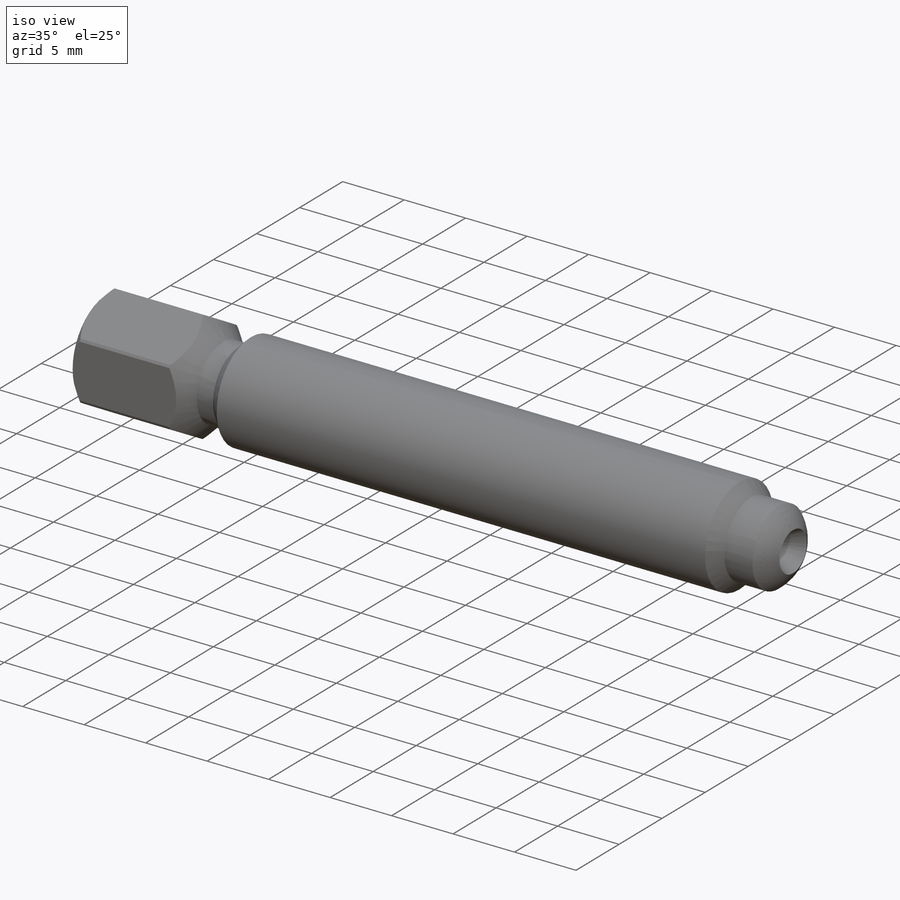
[diagram: iso view]
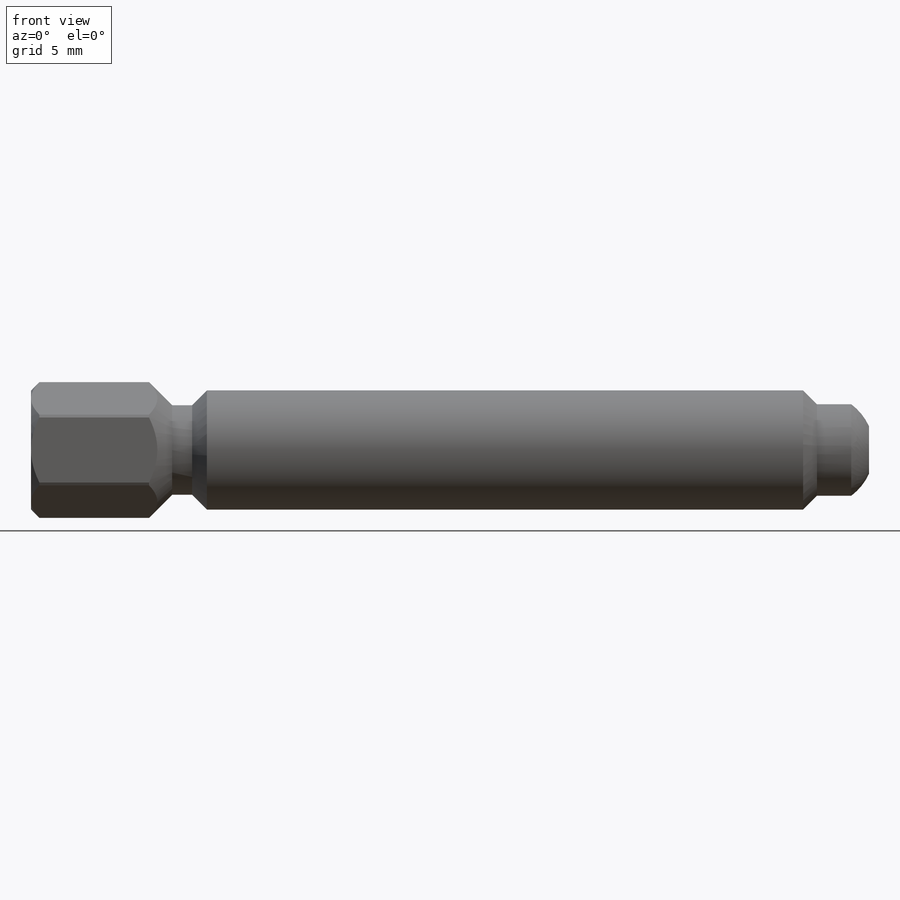
[diagram: front view]
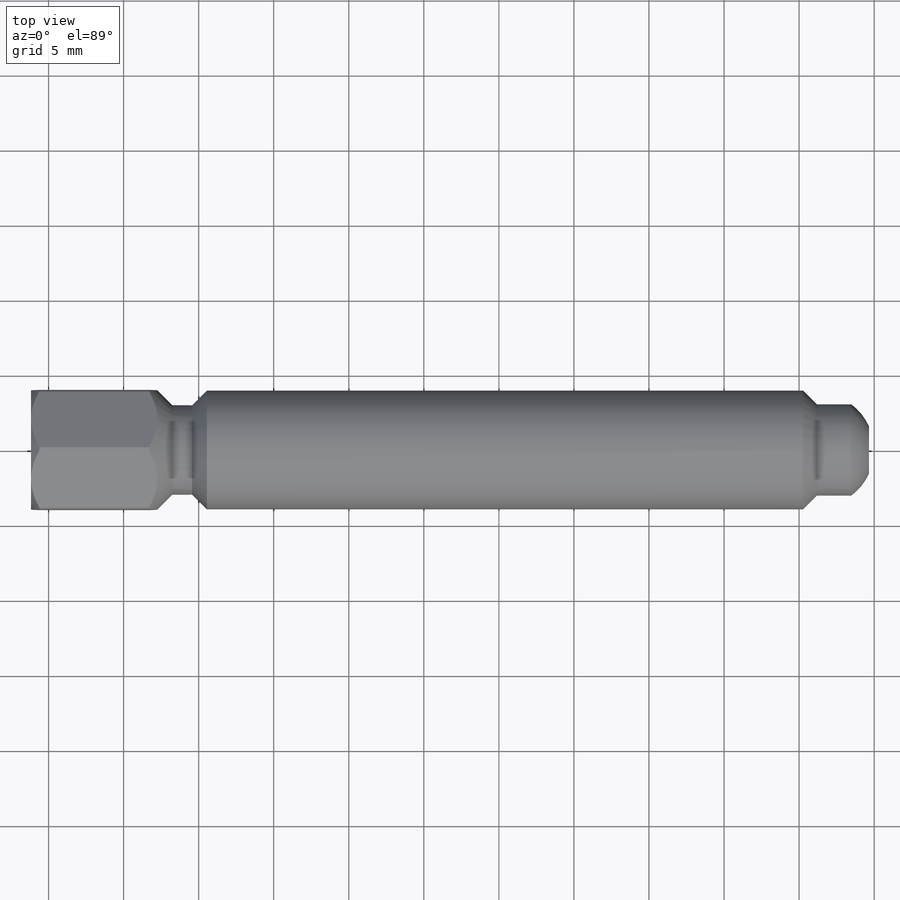
[diagram: top view]
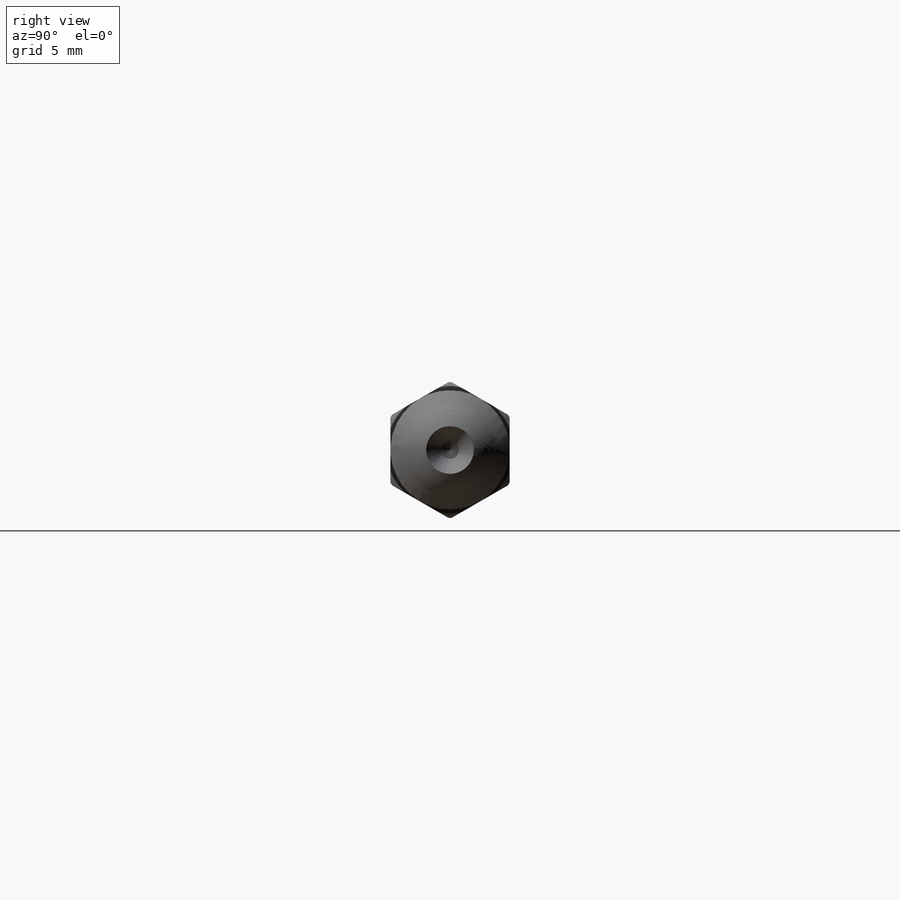
[diagram: right view]
SOLIDWORKS PART (.sldprt)
format: sldprt  version: not decoded by parser v0  size: 708,608 bytes
history: native  units: mm
features: sketch x4, plane x3, cut_extrude x2, material x1, revolve x1, cut_revolve x1 (+9 scaffold rows collapsed)
feature tree (21):
  scaffold x9  (default folders/planes/origin — collapsed)
  material  "NITRONIC 60"
  plane  "Plane1"
  plane  "Plane2"
  plane  "Plane3"
  sketch  "Sketch1"  dims[c1.O.D.=6.35mm c1.D1=3.81mm c1.D2=38.1mm c1.D3=7.9375mm c2.D2=38.1mm c2.D4=~5.806736mm c3.D4=~30.133751deg c4.D4=~11.566737mm c5.D4=~30.133751deg c6.D4=~10.00356mm c7.D4=100.0deg c7.D5=6.096mm c7.D6=~0.92075mm c8.D6=45.0deg c8.D7=3.81mm c8.D8=6.223mm c8.D2=44.45mm c9.D8=8.382mm c9.D9=9.525mm c9.D2=44.45mm c10.D8=3.302mm c10.D10=5.08mm c10.D11=~44.55438mm c10.D2=44.45mm c11.D8=5.08mm c11.D10=3.302mm c11.D11=5.08mm c11.D12=45.0deg c12.D8=9.398mm c12.D11=5.969mm c12.ID=237251844.0 c13.ID=-1.0]
  revolve  "Revolve1"  Angle=360deg
  sketch  "Sketch2"  dims[D1=7.9375mm]
  cut_extrude  "Cut-Extrude1"  [1 undecoded]
  sketch  "Sketch3"  dims[D1=9.0424mm]
  cut_extrude  "Cut-Extrude2"  [1 undecoded]
  sketch  "Sketch4"  dims[c1.D1=~1.163602mm c2.D1=~35.567821deg c3.D1=~0.883822mm c4.D1=60.0deg c4.D2=3.175mm c4.D3=~1.190625mm c4.D4=~1.190625mm c4.D5=~1.110486mm c5.D5=120.0deg]
  cut_revolve  "Cut-Revolve1"  Angle=360deg
decode coverage: 6 of 8 modeling features carry decoded parameters
note: ~ marks probable driven/reference dimensions
note: 2 parameter values undecoded
note: suppression state not decoded; provenance and decode notes live in map.json
